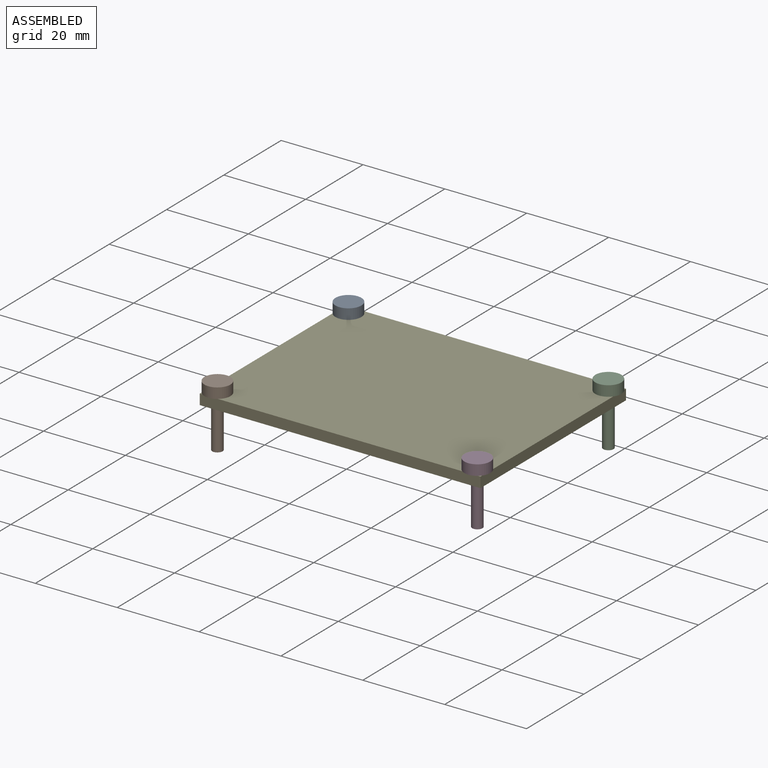
[diagram: assembled view]
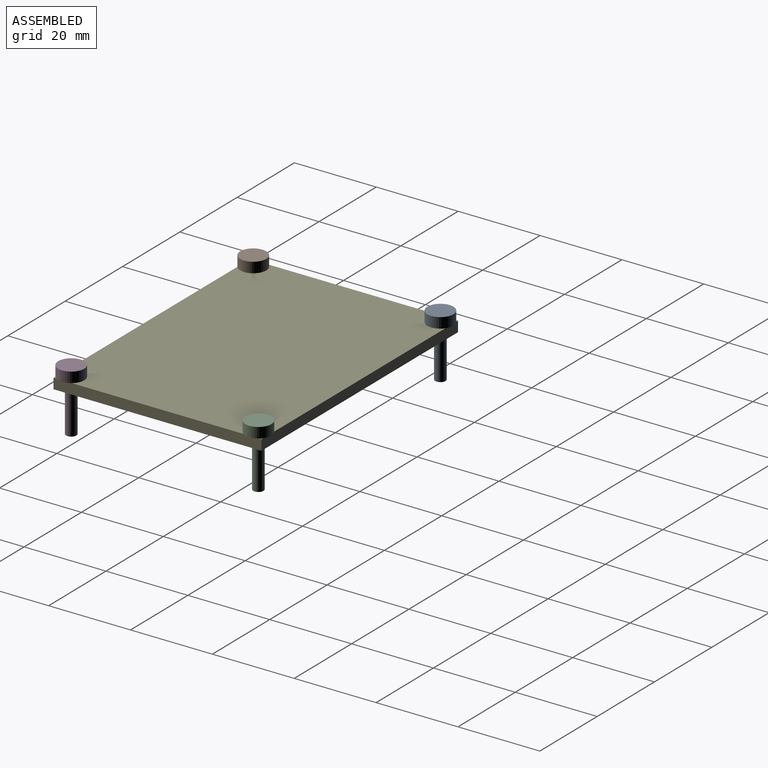
[diagram: assembled view, second angle]
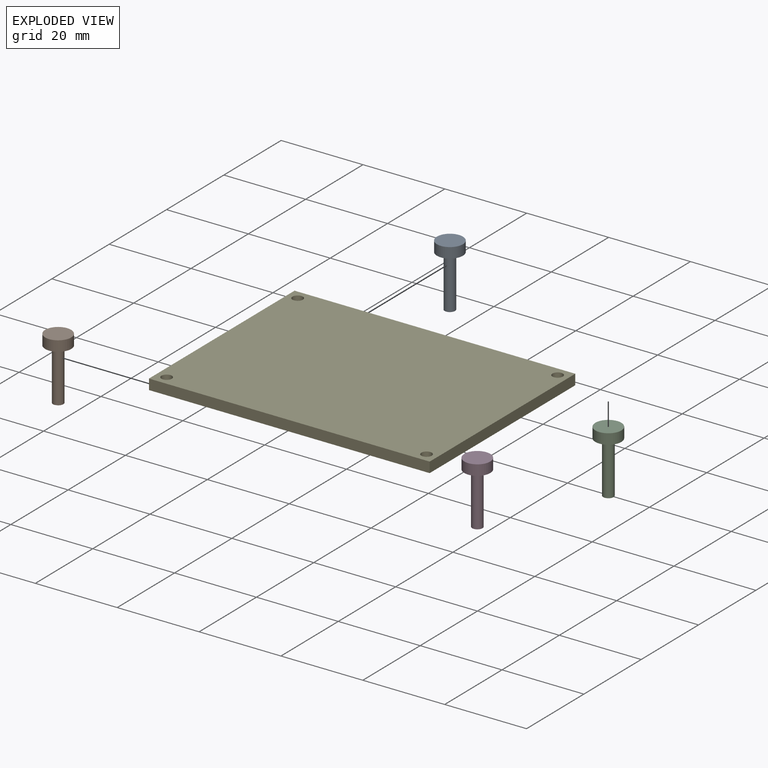
[diagram: exploded view]
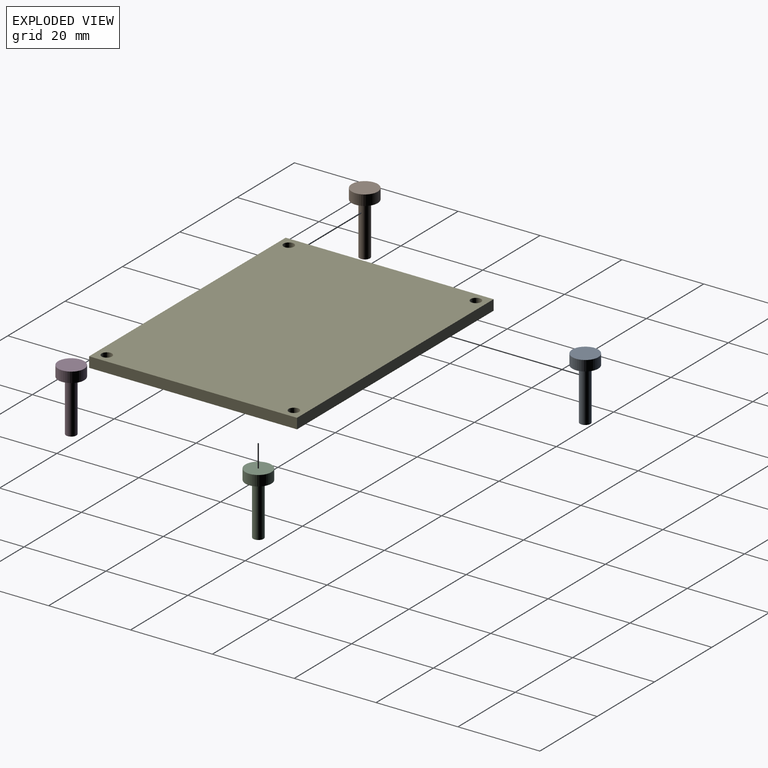
[diagram: exploded view, second angle]
ASSEMBLY  parts=5 mates=4
PART A: 5 faces, bbox 6.4x15.2x6.4 mm
  f0: cylinder r=1.27mm len=12.7mm, axis (0,1,0), area 101.3mm2, adj f1,f4
  f1: plane 2.54x2.54mm, normal (0,1,0), area 5.1mm2, adj f0
  f2: cylinder r=3.17mm len=6.35mm, axis (0,1,0), area 50.7mm2, adj f3,f4
  f3: plane 6.35x6.35mm, normal (0,-1,0), area 31.7mm2, adj f2
  f4: plane 6.35x6.35mm, normal (0,1,0), area 26.6mm2, adj f0,f2
PART B: same geometry as A
PART C: same geometry as A
PART D: same geometry as A
PART E: 10 faces, bbox 68.6x50.8x2.5 mm
  f0: plane 50.8x2.54mm, normal (1,0,0), area 129mm2, adj f1,f3,f4,f5
  f1: plane 68.58x50.8mm, normal (0,0,1), area 3463.6mm2, adj f0,f2,f4,f5,f6,f7,f8,f9
  f2: plane 50.8x2.54mm, normal (-1,0,0), area 129mm2, adj f1,f3,f4,f5
  f3: plane 68.58x50.8mm, normal (0,0,-1), area 3463.6mm2, adj f0,f2,f4,f5,f6,f7,f8,f9
  f4: plane 68.58x2.54mm, normal (0,-1,0), area 174.2mm2, adj f0,f1,f2,f3
  f5: plane 68.58x2.54mm, normal (0,1,0), area 174.2mm2, adj f0,f1,f2,f3
  f6: cylinder r=1.27mm len=2.54mm, axis (0,0,1), area 20.3mm2, adj f1,f3
  f7: cylinder r=1.27mm len=2.54mm, axis (0,0,1), area 20.3mm2, adj f1,f3
  f8: cylinder r=1.27mm len=2.54mm, axis (0,0,1), area 20.3mm2, adj f1,f3
  f9: cylinder r=1.27mm len=2.54mm, axis (0,0,1), area 20.3mm2, adj f1,f3
PLACE A rot(axis=(-1,0,0),90deg) t=(-7.68,-44.13,-11.43)mm
PLACE B rot(axis=(-1,0,0),90deg) t=(-7.68,-89.85,-11.43)mm
PLACE C rot(axis=(-1,0,0),90deg) t=(55.82,-44.13,-11.43)mm
PLACE D rot(axis=(-1,0,0),90deg) t=(55.82,-89.85,-11.43)mm
PLACE E at identity fixed
MATE cylindrical E.f7 <-> B.f0  axis (0,0,1) through (-31.75,-48.26,1.27)mm
MATE cylindrical C.f0 <-> E.f6  axis (0,0,-1) through (31.75,-2.54,1.27)mm
MATE cylindrical A.f0 <-> E.f9  axis (0,0,-1) through (-31.75,-2.54,1.27)mm
MATE cylindrical E.f8 <-> D.f0  axis (0,0,1) through (31.75,-48.26,1.27)mm
